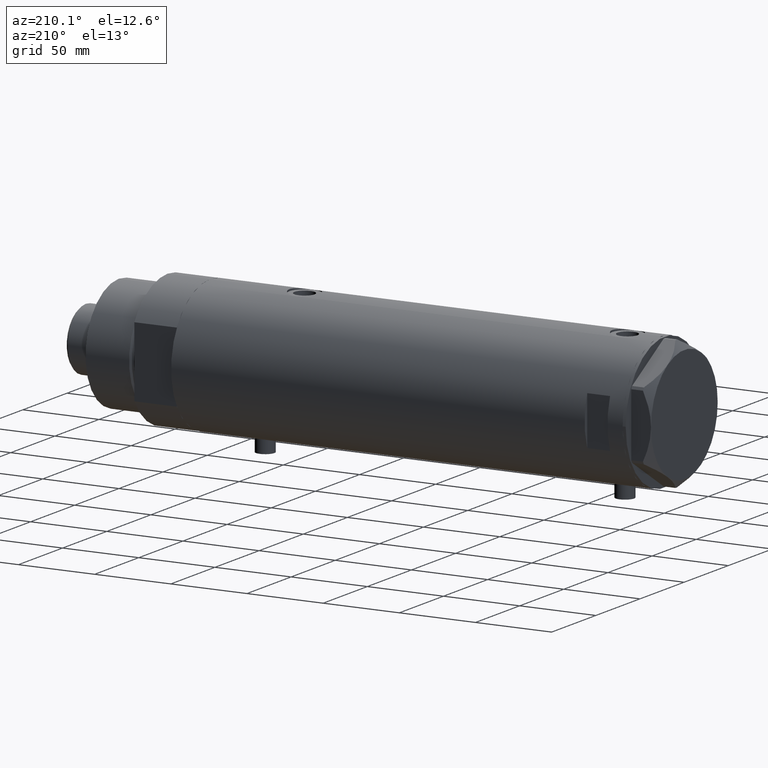
[diagram: clean part render]
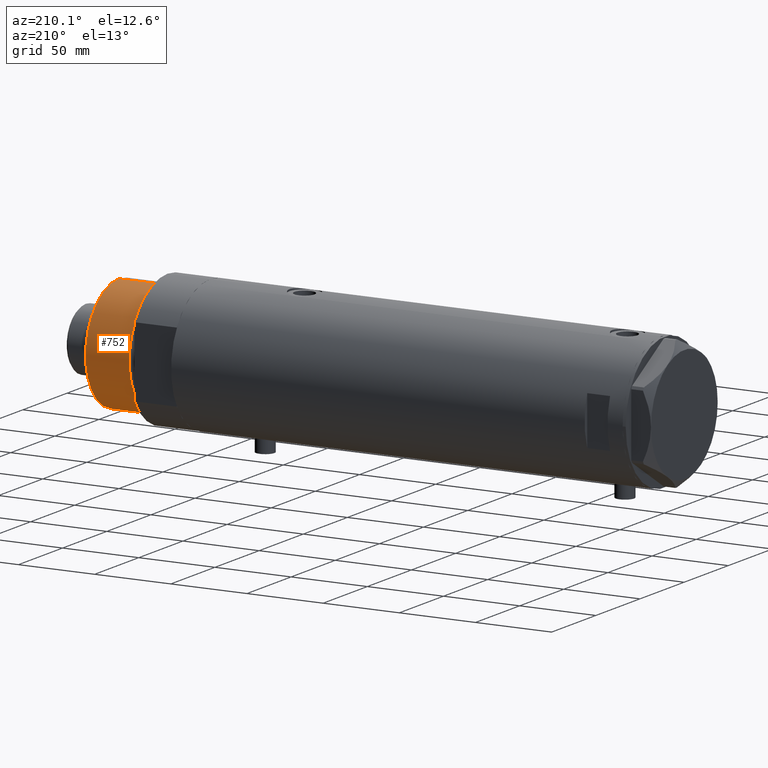
[diagram: same view with one face highlighted and labeled with its STEP entity id]
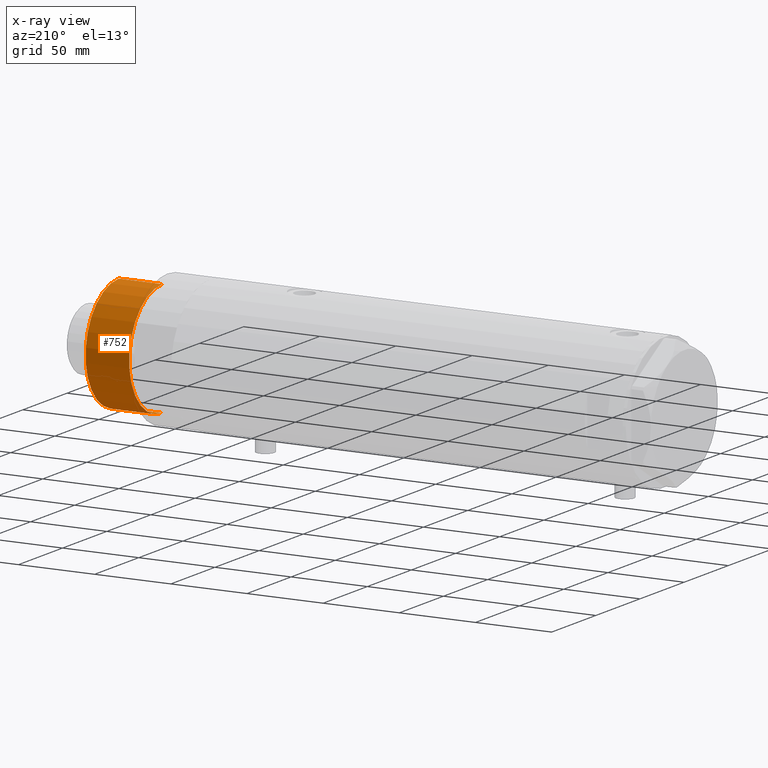
[diagram: x-ray of the same camera — body ghosted, the highlighted face saturated]
A machine part, auxiliary view. The second image highlights one B-rep face of the part: STEP entity #752.
The next image is the same camera in x-ray: the body ghosted, the highlighted face saturated — about 0% of this face is hidden behind the body in this view.
In plain terms, the highlighted cylindrical surface (partial cylindrical patch) has radius 37.5 mm, axis along (-1, -0, 0).
Its self-contained STEP definition (entity closure, byte-faithful):
#508 = CARTESIAN_POINT ( 'NONE',  ( 0.000000000000000000, 0.000000000000000000, 31.27384048104054415 ) ) ;
#752 = ADVANCED_FACE ( 'NONE', ( #2437 ), #2382, .T. ) ;
#970 = LINE ( 'NONE', #1363, #2062 ) ;
#1032 = DIRECTION ( 'NONE',  ( -0.000000000000000000, -0.000000000000000000, -1.000000000000000000 ) ) ;
#1053 = CARTESIAN_POINT ( 'NONE',  ( -37.50000000000000711, 0.000000000000000000, 31.27384048104054415 ) ) ;
#1363 = CARTESIAN_POINT ( 'NONE',  ( -37.50000000000000711, 0.000000000000000000, 59.89999999999999147 ) ) ;
#1429 = CARTESIAN_POINT ( 'NONE',  ( 0.000000000000000000, 0.000000000000000000, 59.89999999999999147 ) ) ;
#1478 = ORIENTED_EDGE ( 'NONE', *, *, #3106, .F. ) ;
#1637 = AXIS2_PLACEMENT_3D ( 'NONE', #508, #4293, #3974 ) ;
#1770 = AXIS2_PLACEMENT_3D ( 'NONE', #4326, #2579, #3977 ) ;
#1867 = CARTESIAN_POINT ( 'NONE',  ( 37.50000000000000711, 4.592425496802575156E-15, 59.89999999999999147 ) ) ;
#2062 = VECTOR ( 'NONE', #3109, 1000.000000000000000 ) ;
#2120 = CIRCLE ( 'NONE', #1637, 37.50000000000000711 ) ;
#2295 = VERTEX_POINT ( 'NONE', #4105 ) ;
#2305 = CARTESIAN_POINT ( 'NONE',  ( 37.50000000000000711, 4.592425496802575156E-15, 59.89999999999999147 ) ) ;
#2382 = CYLINDRICAL_SURFACE ( 'NONE', #3369, 37.50000000000000711 ) ;
#2437 = FACE_OUTER_BOUND ( 'NONE', #4102, .T. ) ;
#2492 = DIRECTION ( 'NONE',  ( -0.000000000000000000, -0.000000000000000000, -1.000000000000000000 ) ) ;
#2511 = EDGE_CURVE ( 'NONE', #3555, #4133, #3625, .T. ) ;
#2559 = CIRCLE ( 'NONE', #1770, 37.50000000000000711 ) ;
#2579 = DIRECTION ( 'NONE',  ( 0.000000000000000000, 0.000000000000000000, 1.000000000000000000 ) ) ;
#2804 = EDGE_CURVE ( 'NONE', #2295, #2847, #970, .T. ) ;
#2847 = VERTEX_POINT ( 'NONE', #1053 ) ;
#2907 = ORIENTED_EDGE ( 'NONE', *, *, #2804, .F. ) ;
#2934 = VECTOR ( 'NONE', #2492, 1000.000000000000000 ) ;
#3067 = ORIENTED_EDGE ( 'NONE', *, *, #2511, .T. ) ;
#3106 = EDGE_CURVE ( 'NONE', #3555, #2295, #2559, .T. ) ;
#3109 = DIRECTION ( 'NONE',  ( -0.000000000000000000, -0.000000000000000000, -1.000000000000000000 ) ) ;
#3369 = AXIS2_PLACEMENT_3D ( 'NONE', #1429, #1032, #4473 ) ;
#3555 = VERTEX_POINT ( 'NONE', #2305 ) ;
#3625 = LINE ( 'NONE', #1867, #2934 ) ;
#3877 = ORIENTED_EDGE ( 'NONE', *, *, #4228, .T. ) ;
#3974 = DIRECTION ( 'NONE',  ( 1.000000000000000000, 0.000000000000000000, 0.000000000000000000 ) ) ;
#3977 = DIRECTION ( 'NONE',  ( 1.000000000000000000, 0.000000000000000000, 0.000000000000000000 ) ) ;
#4098 = CARTESIAN_POINT ( 'NONE',  ( 37.50000000000000711, 4.592425496802575156E-15, 31.27384048104054415 ) ) ;
#4102 = EDGE_LOOP ( 'NONE', ( #1478, #3067, #3877, #2907 ) ) ;
#4105 = CARTESIAN_POINT ( 'NONE',  ( -37.50000000000000711, 0.000000000000000000, 59.89999999999999147 ) ) ;
#4133 = VERTEX_POINT ( 'NONE', #4098 ) ;
#4228 = EDGE_CURVE ( 'NONE', #4133, #2847, #2120, .T. ) ;
#4293 = DIRECTION ( 'NONE',  ( -0.000000000000000000, -0.000000000000000000, 1.000000000000000000 ) ) ;
#4326 = CARTESIAN_POINT ( 'NONE',  ( 0.000000000000000000, 0.000000000000000000, 59.89999999999999147 ) ) ;
#4473 = DIRECTION ( 'NONE',  ( -1.000000000000000000, 0.000000000000000000, 0.000000000000000000 ) ) ;